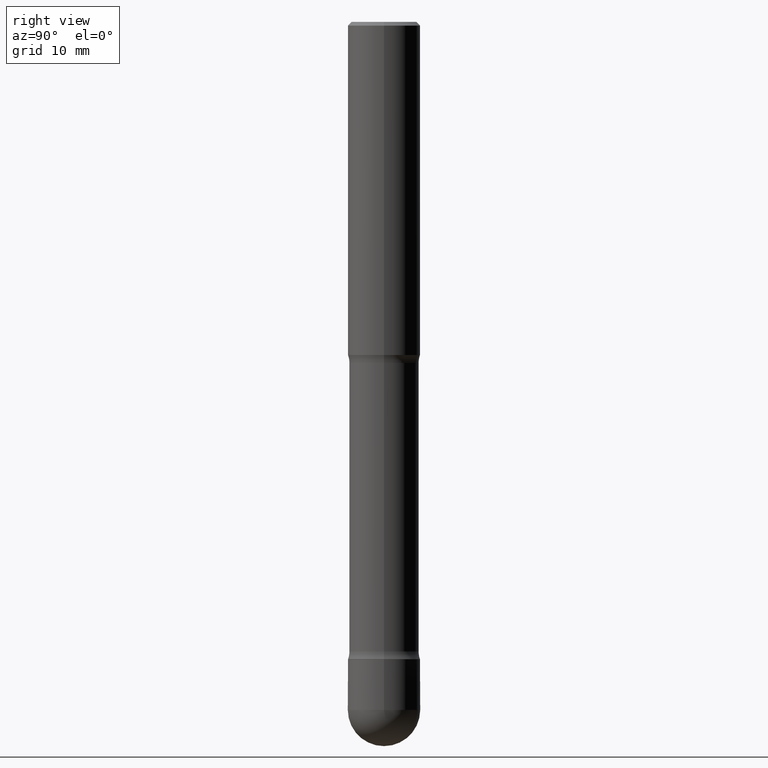
[diagram: clean part render]
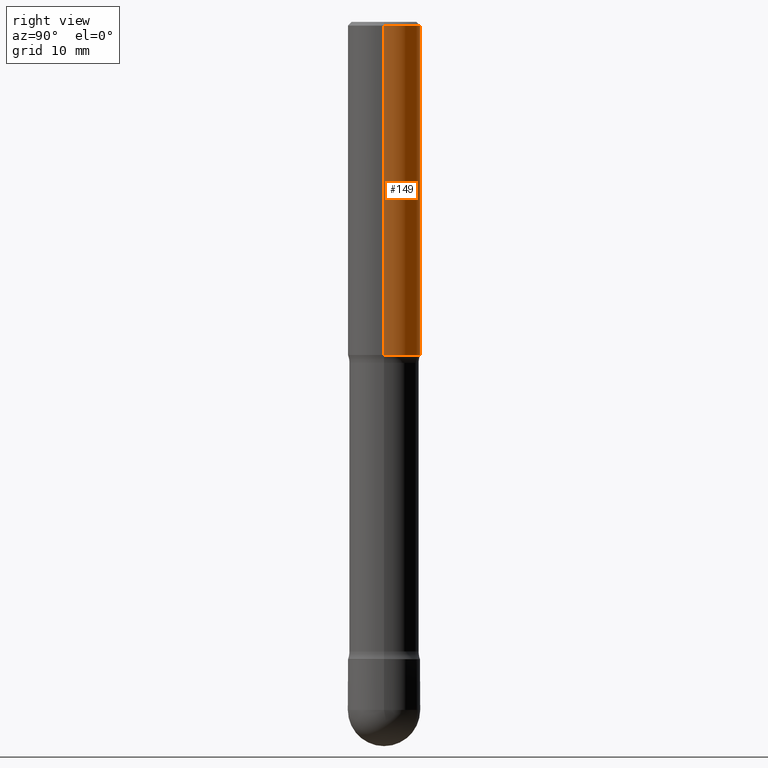
[diagram: same view with one face highlighted and labeled with its STEP entity id]
A machine part, right view. The second image highlights one B-rep face of the part: STEP entity #149.
In plain terms, the highlighted cylindrical surface (edge-blend (fillet) strip) has radius 5 mm, axis along (0, -0, -1).
Its self-contained STEP definition (entity closure, byte-faithful):
#26 = DIRECTION ( 'NONE',  ( 2.445468806185136877E-29, -3.491481338843145188E-15, -1.000000000000000000 ) ) ;
#49 = VERTEX_POINT ( 'NONE', #242 ) ;
#53 = EDGE_CURVE ( 'NONE', #253, #49, #233, .T. ) ;
#61 = CIRCLE ( 'NONE', #314, 0.1968499999999998307 ) ;
#89 = DIRECTION ( 'NONE',  ( 2.445468806185136877E-29, -3.491481338843145188E-15, -1.000000000000000000 ) ) ;
#110 = CARTESIAN_POINT ( 'NONE',  ( -0.1968499999999998307, 1.304766576325678310E-15, -0.01999999999999978531 ) ) ;
#126 = EDGE_LOOP ( 'NONE', ( #382, #346, #239, #289 ) ) ;
#138 = DIRECTION ( 'NONE',  ( -1.000000000000000000, 6.982962677686266711E-15, 0.000000000000000000 ) ) ;
#149 = ADVANCED_FACE ( 'NONE', ( #262 ), #176, .T. ) ;
#152 = AXIS2_PLACEMENT_3D ( 'NONE', #563, #351, #311 ) ;
#176 = CYLINDRICAL_SURFACE ( 'NONE', #152, 0.1968499999999999417 ) ;
#178 = DIRECTION ( 'NONE',  ( 2.445468806185136597E-29, -3.491481338843145583E-15, -1.000000000000000000 ) ) ;
#196 = CARTESIAN_POINT ( 'NONE',  ( 4.428744008001288403E-29, -6.323072704644945461E-15, -1.811000000000002608 ) ) ;
#229 = CARTESIAN_POINT ( 'NONE',  ( -0.1968499999999999417, -1.072199004345342055E-14, -3.464599999999999902 ) ) ;
#233 = CIRCLE ( 'NONE', #436, 0.1968500000000000527 ) ;
#239 = ORIENTED_EDGE ( 'NONE', *, *, #53, .F. ) ;
#242 = CARTESIAN_POINT ( 'NONE',  ( 0.1968500000000000527, -4.546940196572229414E-15, -1.811000000000002608 ) ) ;
#244 = EDGE_CURVE ( 'NONE', #520, #49, #317, .T. ) ;
#253 = VERTEX_POINT ( 'NONE', #364 ) ;
#262 = FACE_OUTER_BOUND ( 'NONE', #126, .T. ) ;
#289 = ORIENTED_EDGE ( 'NONE', *, *, #523, .F. ) ;
#308 = VERTEX_POINT ( 'NONE', #110 ) ;
#311 = DIRECTION ( 'NONE',  ( -1.000000000000000000, 6.982962677686270655E-15, 0.000000000000000000 ) ) ;
#314 = AXIS2_PLACEMENT_3D ( 'NONE', #406, #178, #138 ) ;
#317 = LINE ( 'NONE', #484, #468 ) ;
#341 = VECTOR ( 'NONE', #26, 39.37007874015748143 ) ;
#346 = ORIENTED_EDGE ( 'NONE', *, *, #244, .T. ) ;
#351 = DIRECTION ( 'NONE',  ( 2.445468806185136597E-29, -3.491481338843145583E-15, -1.000000000000000000 ) ) ;
#364 = CARTESIAN_POINT ( 'NONE',  ( -0.1968500000000000527, -4.948476501542403853E-15, -1.811000000000002608 ) ) ;
#372 = CARTESIAN_POINT ( 'NONE',  ( 0.1968499999999998307, -1.420318657638186952E-15, -0.01999999999999978531 ) ) ;
#378 = DIRECTION ( 'NONE',  ( 2.445468806185136597E-29, -3.491481338843145583E-15, -1.000000000000000000 ) ) ;
#382 = ORIENTED_EDGE ( 'NONE', *, *, #413, .T. ) ;
#406 = CARTESIAN_POINT ( 'NONE',  ( 4.890937612370220610E-31, -6.982962677686216421E-17, -0.01999999999999978531 ) ) ;
#413 = EDGE_CURVE ( 'NONE', #308, #520, #61, .T. ) ;
#425 = LINE ( 'NONE', #229, #341 ) ;
#436 = AXIS2_PLACEMENT_3D ( 'NONE', #196, #378, #543 ) ;
#468 = VECTOR ( 'NONE', #89, 39.37007874015748143 ) ;
#484 = CARTESIAN_POINT ( 'NONE',  ( 0.1968499999999999417, -1.344707527741728837E-14, -3.464599999999999902 ) ) ;
#520 = VERTEX_POINT ( 'NONE', #372 ) ;
#523 = EDGE_CURVE ( 'NONE', #308, #253, #425, .T. ) ;
#543 = DIRECTION ( 'NONE',  ( -1.000000000000000000, 6.982962677686266711E-15, 0.000000000000000000 ) ) ;
#563 = CARTESIAN_POINT ( 'NONE',  ( 8.472571225909024784E-29, -1.209658624655596216E-14, -3.464599999999999902 ) ) ;